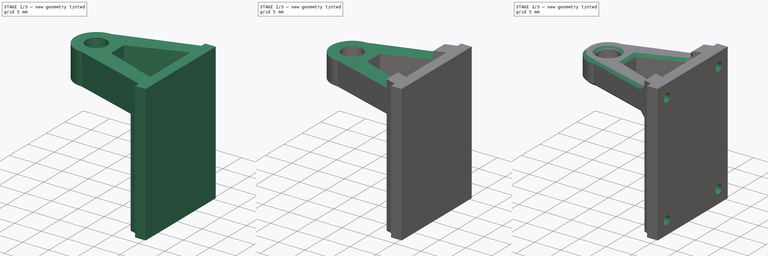
[diagram: build sequence overview — one tinted view per stage of 3, left to right]
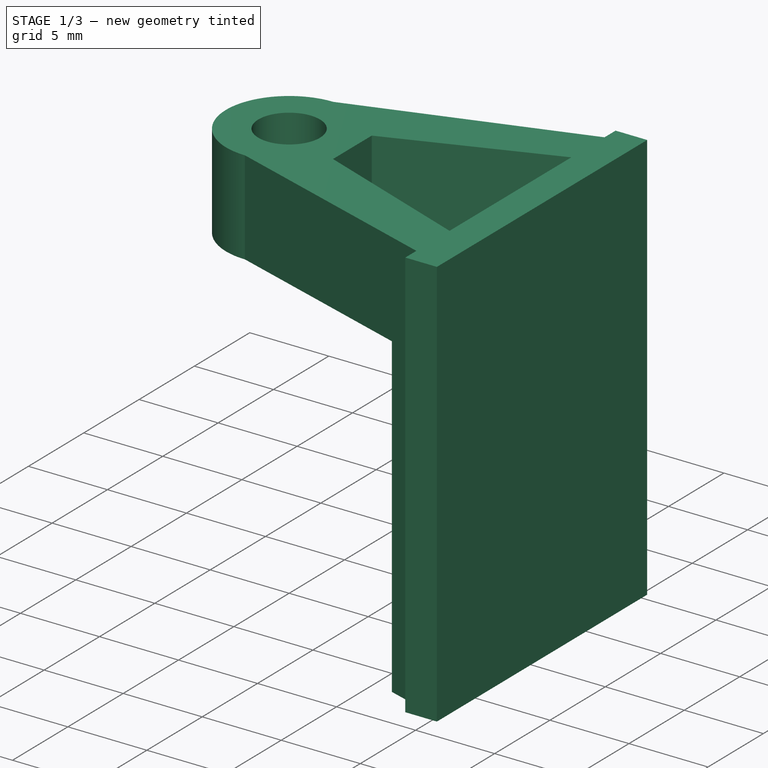
[diagram: stage 1 of 3 — iso view after this stage's code; geometry added in this stage tinted green]
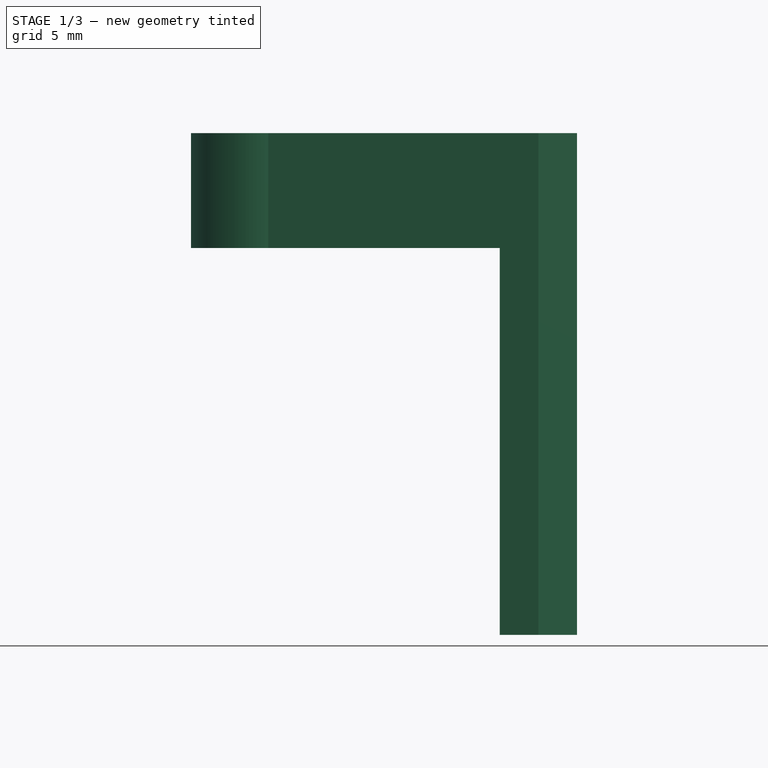
[diagram: stage 1 of 3 — front view after this stage's code; geometry added in this stage tinted green]
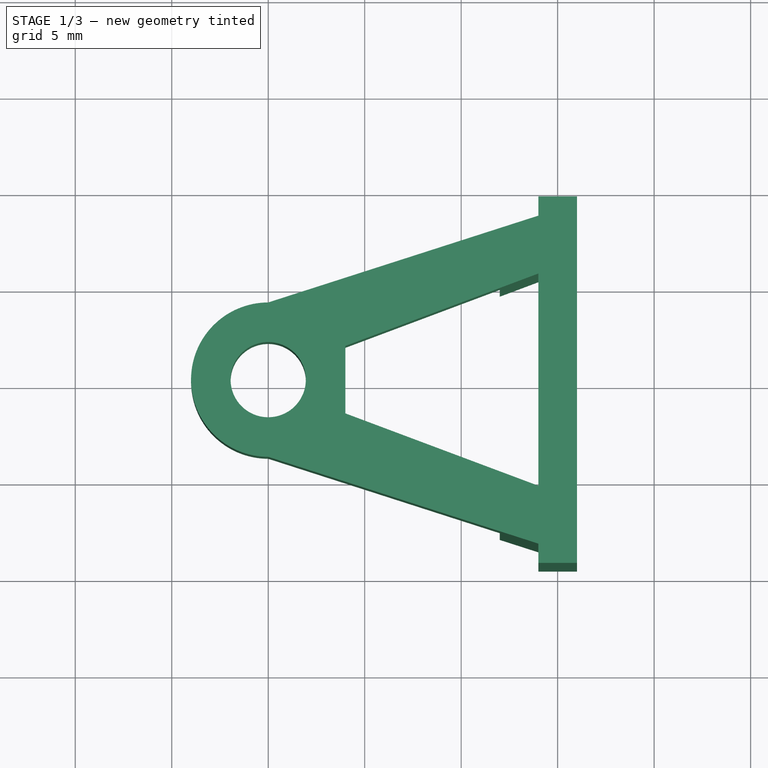
[diagram: stage 1 of 3 — top view after this stage's code; geometry added in this stage tinted green]
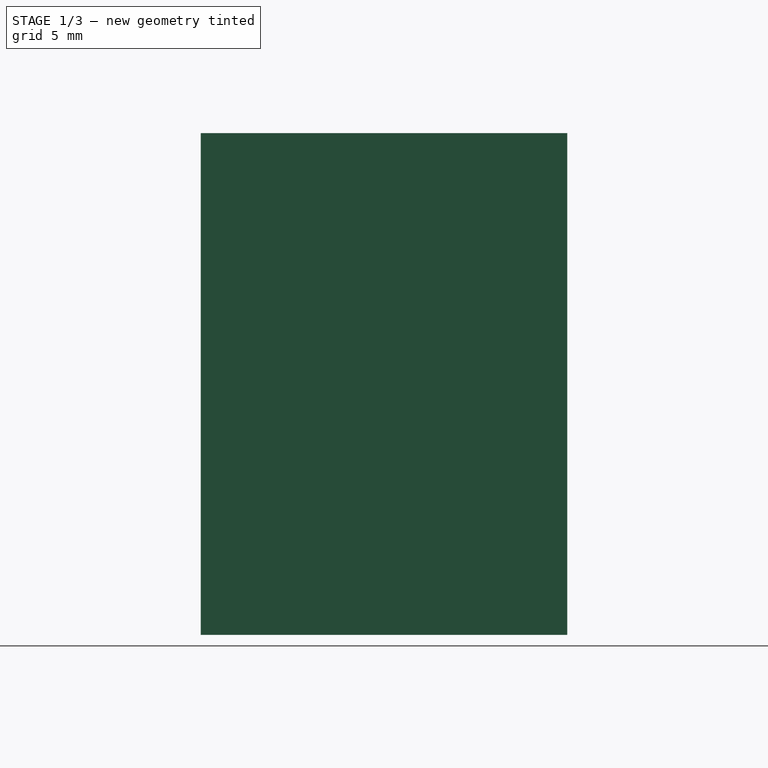
[diagram: stage 1 of 3 — right view after this stage's code; geometry added in this stage tinted green]
FCSTD DOCUMENT  (FreeCAD 0.18.4R)
Label: camera_mount_single
License: All rights reserved
LicenseURL: http://en.wikipedia.org/wiki/All_rights_reserved
objects: Sketcher::SketchObject×5, PartDesign::Pocket×3, PartDesign::Pad×1, PartDesign::Chamfer×1, PartDesign::Body×1
note: 15 computed .brp shape members not serialized (recipe doc carries the construction recipe); baked Part::Feature solids carry a one-line shape summary decoded from their .brp

FEATURE [Sketcher::SketchObject] Sketch
  MapMode = 5
  Support = -> [XY_Plane]
  sketch-geometry (13):
    g0: LineSegment StartX=14 StartY=9.5 StartZ=0 EndX=16 EndY=9.5 EndZ=0
    g1: LineSegment StartX=16 StartY=9.5 StartZ=0 EndX=16 EndY=-9.5 EndZ=0
    g2: LineSegment StartX=16 StartY=-9.5 StartZ=0 EndX=14 EndY=-9.5 EndZ=0
    g3: LineSegment StartX=14 StartY=-9.5 StartZ=0 EndX=14 EndY=-8.5 EndZ=0
    g4: Circle CenterX=0 CenterY=0 CenterZ=0 NormalX=0 NormalY=0 NormalZ=1 AngleXU=0 Radius=1.95
    g5: ArcOfCircle CenterX=0 CenterY=0 CenterZ=0 NormalX=0 NormalY=0 NormalZ=1 AngleXU=0 Radius=4 StartAngle=1.5708 EndAngle=4.71239
    g6: LineSegment StartX=-7e-16 StartY=-4 StartZ=0 EndX=14 EndY=-8.5 EndZ=0
    g7: LineSegment StartX=2e-16 StartY=4 StartZ=0 EndX=14 EndY=8.5 EndZ=0
    g8: LineSegment StartX=14 StartY=8.5 StartZ=0 EndX=14 EndY=9.5 EndZ=0
    g9: LineSegment StartX=4 StartY=1.75 StartZ=0 EndX=4 EndY=-1.75 EndZ=0
    g10: LineSegment StartX=14 StartY=5.5 StartZ=0 EndX=14 EndY=-5.5 EndZ=0
    g11: LineSegment StartX=4 StartY=1.75 StartZ=0 EndX=14 EndY=5.5 EndZ=0
    g12: LineSegment StartX=14 StartY=-5.5 StartZ=0 EndX=4 EndY=-1.75 EndZ=0
  constraints (37):
    c: Coincident(g0,g1)
    c: Coincident(g1,g2)
    c: Coincident(g2,g3)
    c: Coincident(g8,g0)
    c: Horizontal(g0)
    c: Horizontal(g2)
    c: Vertical(g1)
    c: Vertical(g3)
    c: DistanceX(g0,g0) = 2
    c: DistanceY(g1,g1) = 19
    c: DistanceX(g-1,g0) = 14
    c: DistanceY(g-1,g0) = 9.5
    c: Coincident(g4,g-1)
    c: Diameter(g4) = 3.9
    c: Coincident(g5,g4)
    c: Diameter(g5) = 8
    c: Coincident(g5,g7)
    c: Coincident(g5,g6)
    c: Coincident(g3,g6)
    c: Coincident(g8,g7)
    c: Tangent(g3,g8)
    c: DistanceY(g8,g8) = 1
    c: DistanceY(g3,g3) = 1
    c: DistanceX(g4,g5) = 0
    c: DistanceX(g5,g4) = 0
    c: Vertical(g9)
    c: Vertical(g10)
    c: DistanceX(g7,g10) = 0
    c: DistanceY(g10,g7) = 3
    c: DistanceY(g3,g10) = 3
    c: DistanceY(g9,g9) = 3.5
    c: DistanceY(g4,g9) = 1.75
    c: DistanceX(g4,g9) = 4
    c: Coincident(g11,g9)
    c: Coincident(g11,g10)
    c: Coincident(g12,g10)
    c: Coincident(g12,g9)
FEATURE [PartDesign::Pad] Pad
  Length = 26
  Length2 = 100
  Profile = -> Sketch
  Type = 0
FEATURE [Sketcher::SketchObject] Sketch001
  MapMode = 5
  Placement = pos=(0,0,0) rot=(1,0,0;3.14159rad)
  Support = -> [Pad]
FEATURE [Sketcher::SketchObject] Sketch002
  ExternalGeometry = -> [Pad]
  MapMode = 5
  Placement = pos=(0,0,0) rot=(1,0,0;3.14159rad)
  Support = -> [Pad]
  sketch-geometry (4):
    g0: LineSegment StartX=-6 StartY=11 StartZ=0 EndX=12 EndY=11 EndZ=0
    g1: LineSegment StartX=12 StartY=11 StartZ=0 EndX=12 EndY=-11 EndZ=0
    g2: LineSegment StartX=12 StartY=-11 StartZ=0 EndX=-6 EndY=-11 EndZ=0
    g3: LineSegment StartX=-6 StartY=-11 StartZ=0 EndX=-6 EndY=11 EndZ=0
  constraints (12):
    c: Coincident(g0,g1)
    c: Coincident(g1,g2)
    c: Coincident(g2,g3)
    c: Coincident(g3,g0)
    c: Horizontal(g0)
    c: Horizontal(g2)
    c: Vertical(g1)
    c: Vertical(g3)
    c: DistanceX(g0,g-3) = 2
    c: DistanceY(g3,g3) = 22
    c: DistanceX(g0,g0) = 18
    c: DistanceY(g-1,g0) = 11
FEATURE [PartDesign::Pocket] Pocket
  BaseFeature = -> Pad
  Length = 20.05
  Length2 = 100
  Profile = -> Sketch002
  Type = 0
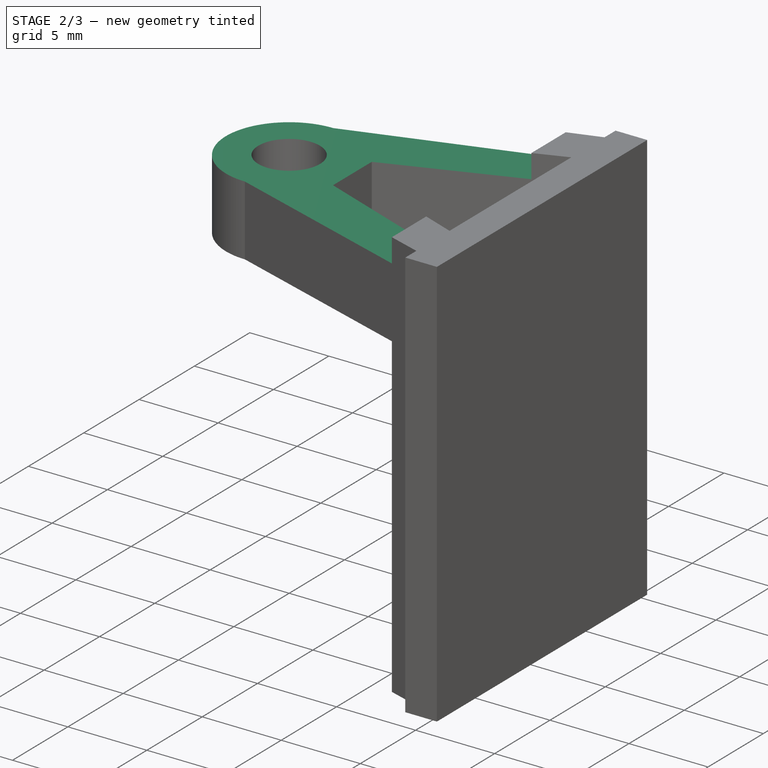
[diagram: stage 2 of 3 — iso view after this stage's code; geometry added in this stage tinted green]
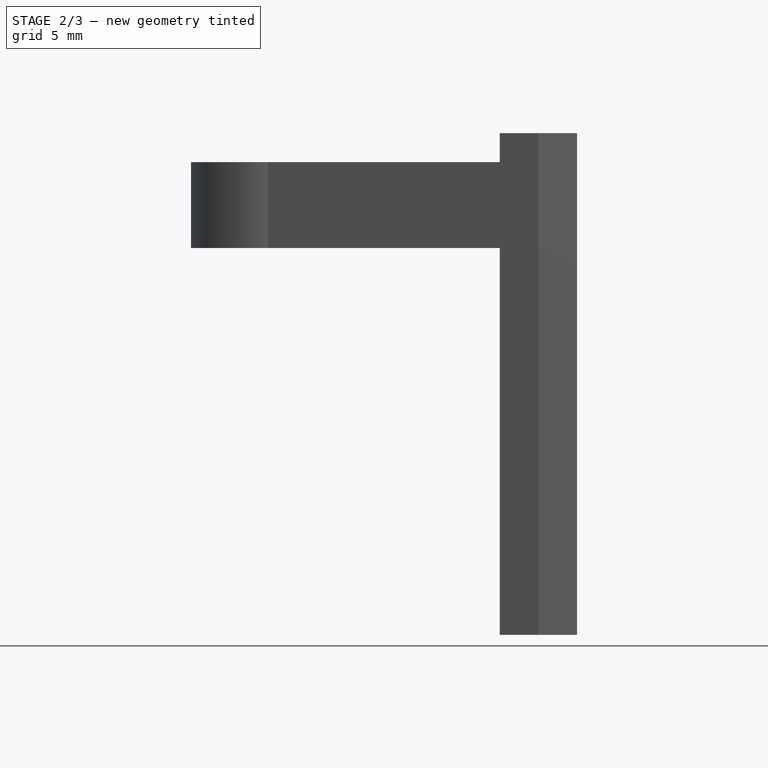
[diagram: stage 2 of 3 — front view after this stage's code; geometry added in this stage tinted green]
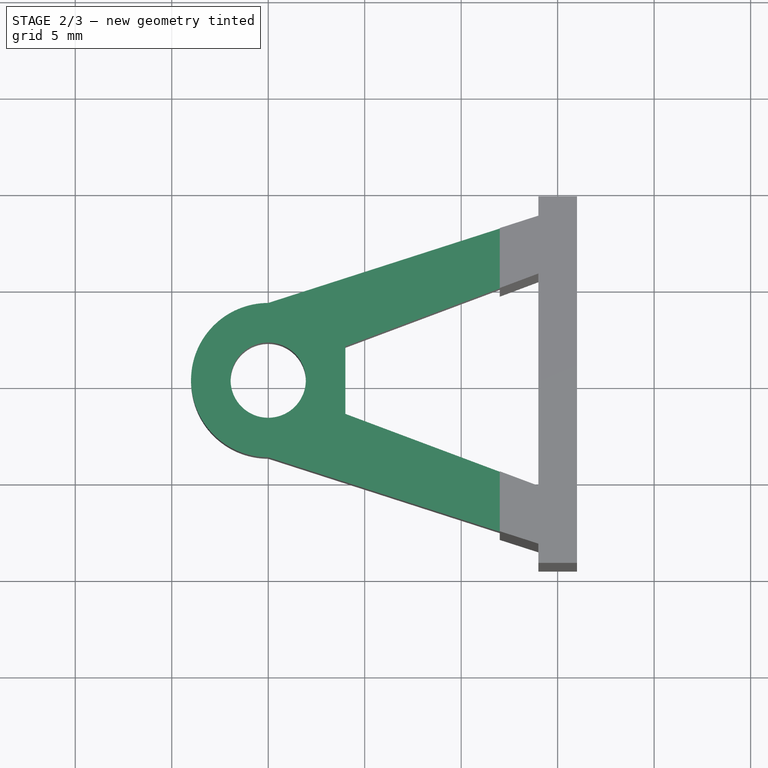
[diagram: stage 2 of 3 — top view after this stage's code; geometry added in this stage tinted green]
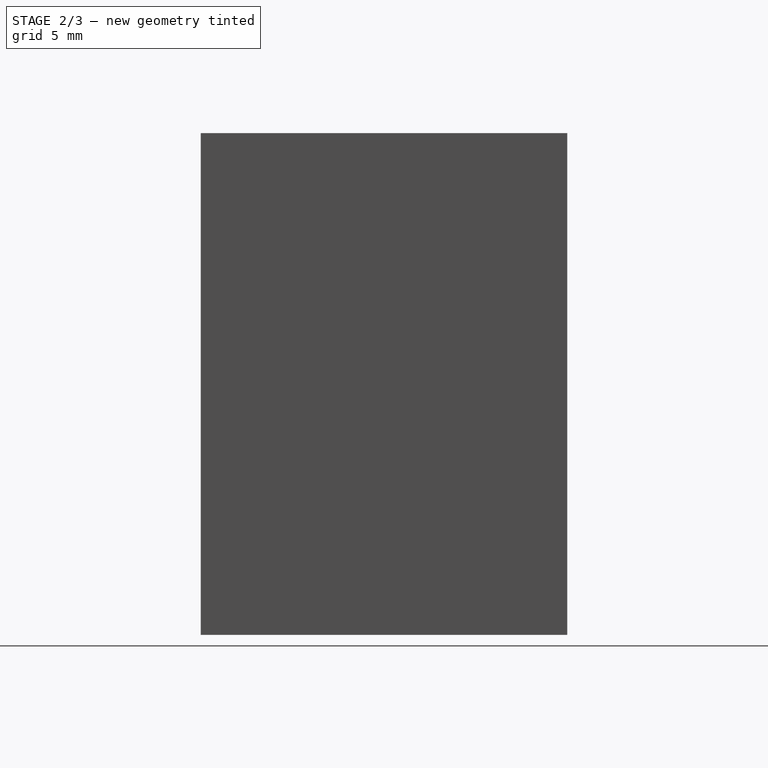
[diagram: stage 2 of 3 — right view after this stage's code; geometry added in this stage tinted green]
FEATURE [Sketcher::SketchObject] Sketch003
  ExternalGeometry = -> [Pocket]
  MapMode = 5
  Placement = pos=(0,0,26) rot=(0,0,1;0rad)
  Support = -> [Pocket]
  sketch-geometry (4):
    g0: LineSegment StartX=-6.7 StartY=10.42 StartZ=0 EndX=12 EndY=10.42 EndZ=0
    g1: LineSegment StartX=12 StartY=10.42 StartZ=0 EndX=12 EndY=-9.15 EndZ=0
    g2: LineSegment StartX=12 StartY=-9.15 StartZ=0 EndX=-6.7 EndY=-9.15 EndZ=0
    g3: LineSegment StartX=-6.7 StartY=-9.15 StartZ=0 EndX=-6.7 EndY=10.42 EndZ=0
  constraints (12):
    c: Coincident(g0,g1)
    c: Coincident(g1,g2)
    c: Coincident(g2,g3)
    c: Coincident(g3,g0)
    c: Horizontal(g0)
    c: Horizontal(g2)
    c: Vertical(g1)
    c: Vertical(g3)
    c: DistanceX(g0,g-3) = 0
    c: DistanceX(g0,g-1) = 6.7
    c: DistanceY(g2,g-1) = 9.15
    c: DistanceY(g3,g3) = 19.57
FEATURE [PartDesign::Pocket] Pocket001
  BaseFeature = -> Pocket
  Length = 1.5
  Length2 = 100
  Profile = -> Sketch003
  Type = 0
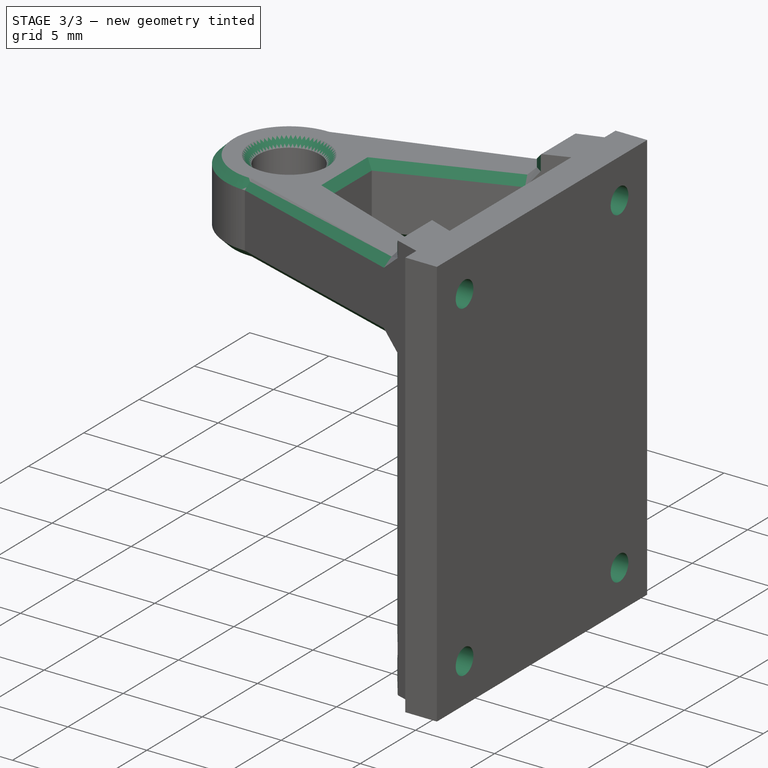
[diagram: stage 3 of 3 — iso view after this stage's code; geometry added in this stage tinted green]
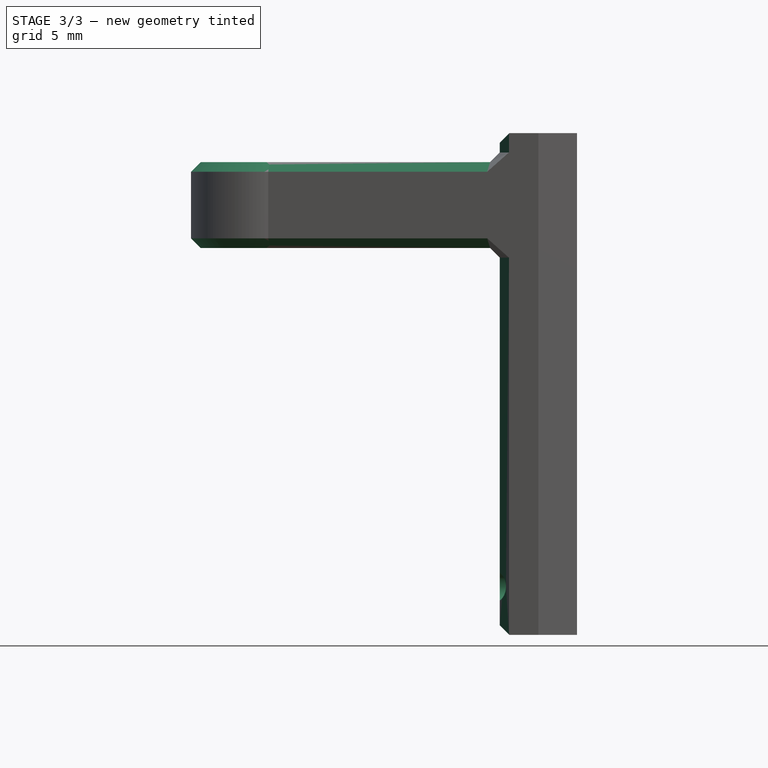
[diagram: stage 3 of 3 — front view after this stage's code; geometry added in this stage tinted green]
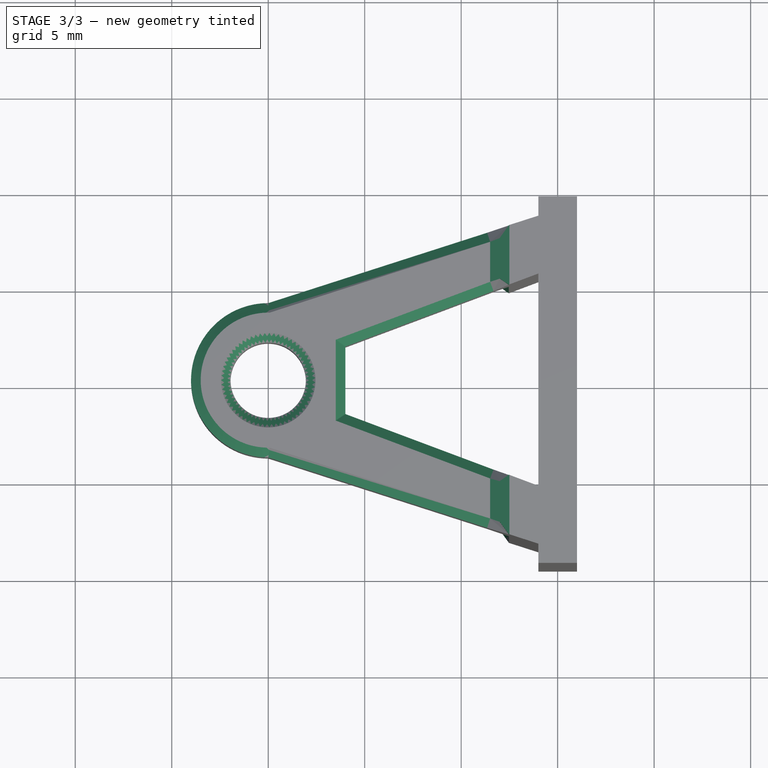
[diagram: stage 3 of 3 — top view after this stage's code; geometry added in this stage tinted green]
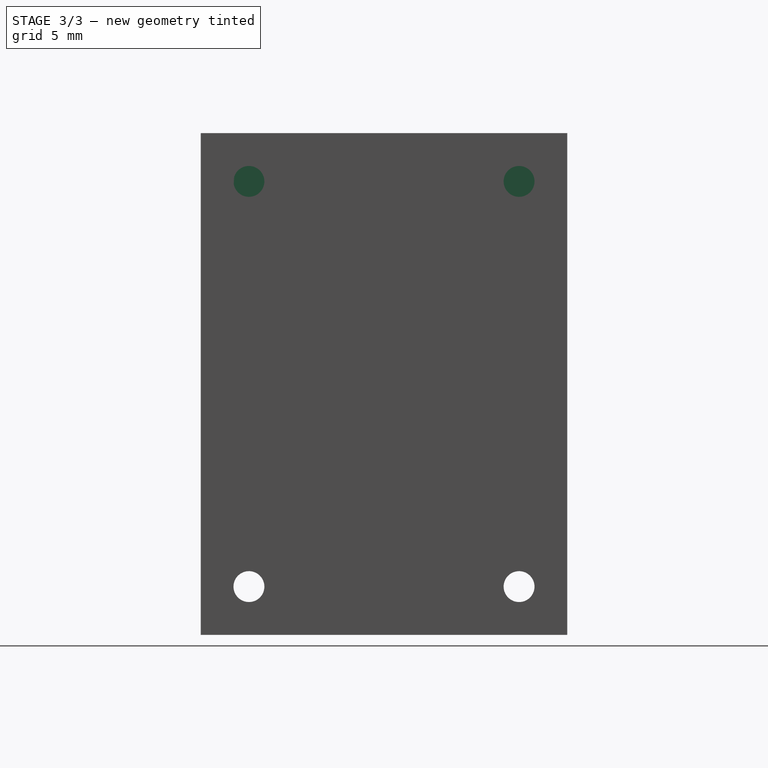
[diagram: stage 3 of 3 — right view after this stage's code; geometry added in this stage tinted green]
FEATURE [PartDesign::Chamfer] Chamfer
  Base = -> Pocket001 [Face2,Face7,Face8,Face21,Face3,Face14]
  BaseFeature = -> Pocket001
  Size = 0.5
FEATURE [Sketcher::SketchObject] Sketch004
  ExternalGeometry = -> [Chamfer]
  MapMode = 5
  Placement = pos=(16,0,0) rot=(0.57735,0.57735,0.57735;2.0944rad)
  Support = -> [Chamfer]
  sketch-geometry (4):
    g0: Circle CenterX=7 CenterY=23.5 CenterZ=0 NormalX=0 NormalY=0 NormalZ=1 AngleXU=0 Radius=0.8
    g1: Circle CenterX=7 CenterY=2.5 CenterZ=0 NormalX=0 NormalY=0 NormalZ=1 AngleXU=0 Radius=0.8
    g2: Circle CenterX=-7 CenterY=2.5 CenterZ=0 NormalX=0 NormalY=0 NormalZ=1 AngleXU=0 Radius=0.8
    g3: Circle CenterX=-7 CenterY=23.5 CenterZ=0 NormalX=0 NormalY=0 NormalZ=1 AngleXU=0 Radius=0.8
  constraints (12):
    c: Diameter(g0) = 1.6
    c: Equal(g0,g1)
    c: Equal(g0,g2)
    c: Equal(g0,g3)
    c: DistanceX(g2,g1) = 14
    c: DistanceX(g3,g0) = 14
    c: DistanceY(g1,g0) = 21
    c: Horizontal(g0,g3)
    c: Horizontal(g2,g1)
    c: Vertical(g2,g3)
    c: DistanceX(g-1,g1) = 7
    c: DistanceY(g-1,g1) = 2.5
FEATURE [PartDesign::Pocket] Pocket002
  BaseFeature = -> Chamfer
  Length = 4
  Length2 = 100
  Profile = -> Sketch004
  Type = 0
FEATURE [PartDesign::Body] Body
  Group = -> [Sketch,Pad,Sketch001,Sketch002,Pocket,Sketch003,Pocket001,Chamfer,Sketch004,Pocket002]
  Origin = -> Origin
  Tip = -> Pocket002
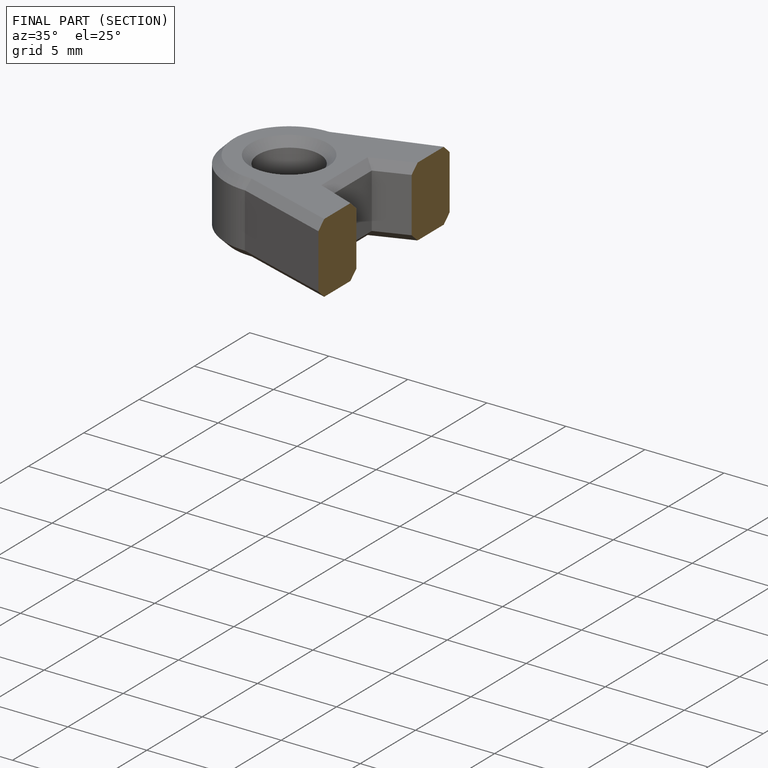
[diagram: finished part — half-section view (interior)]
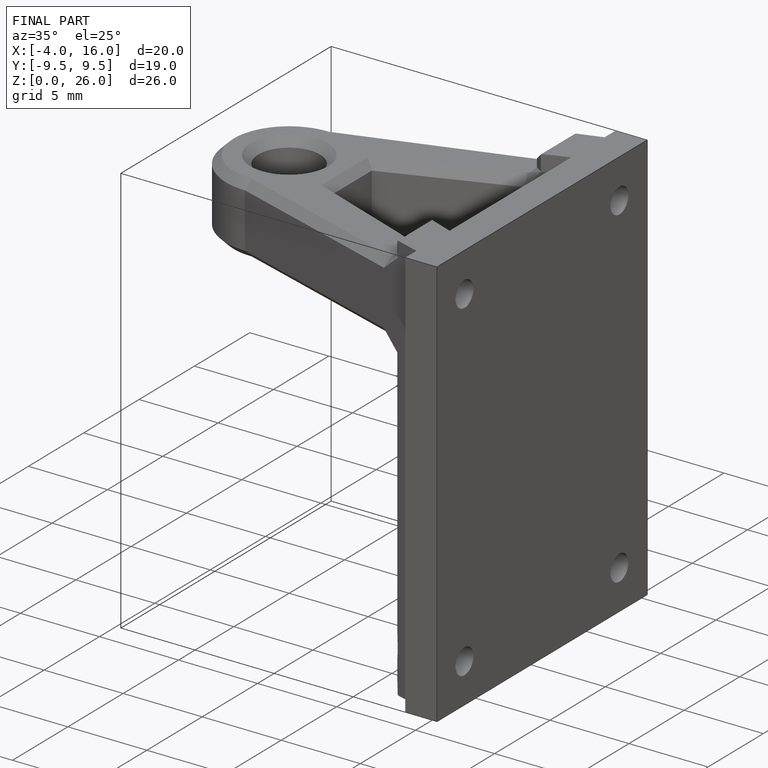
[diagram: finished part — iso view with bounding-box wireframe]
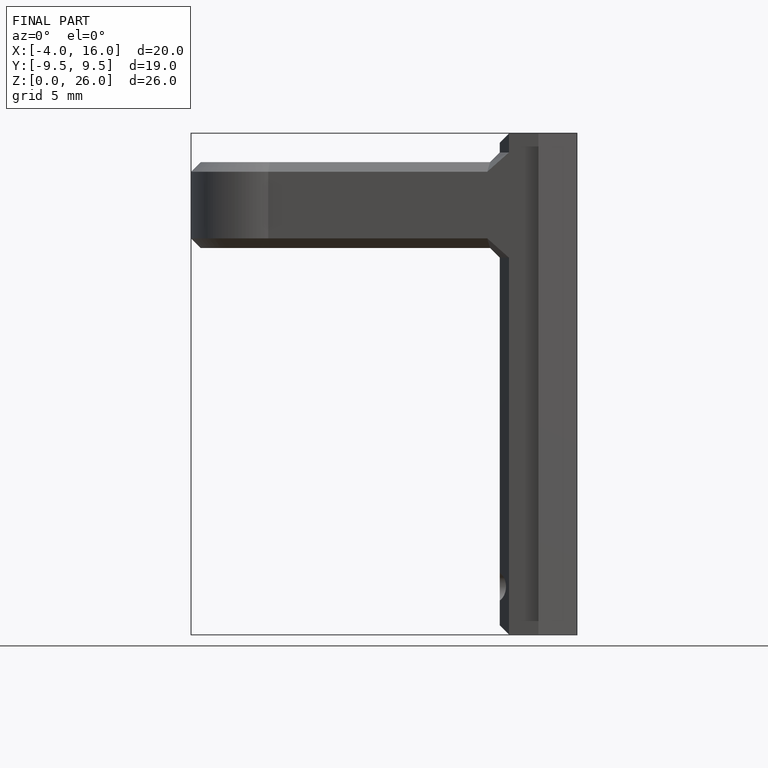
[diagram: finished part — front view with bounding-box wireframe]
